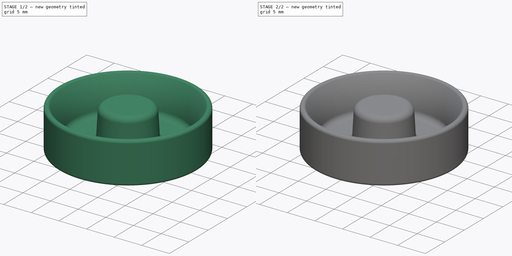
[diagram: build sequence overview — one tinted view per stage of 2, left to right]
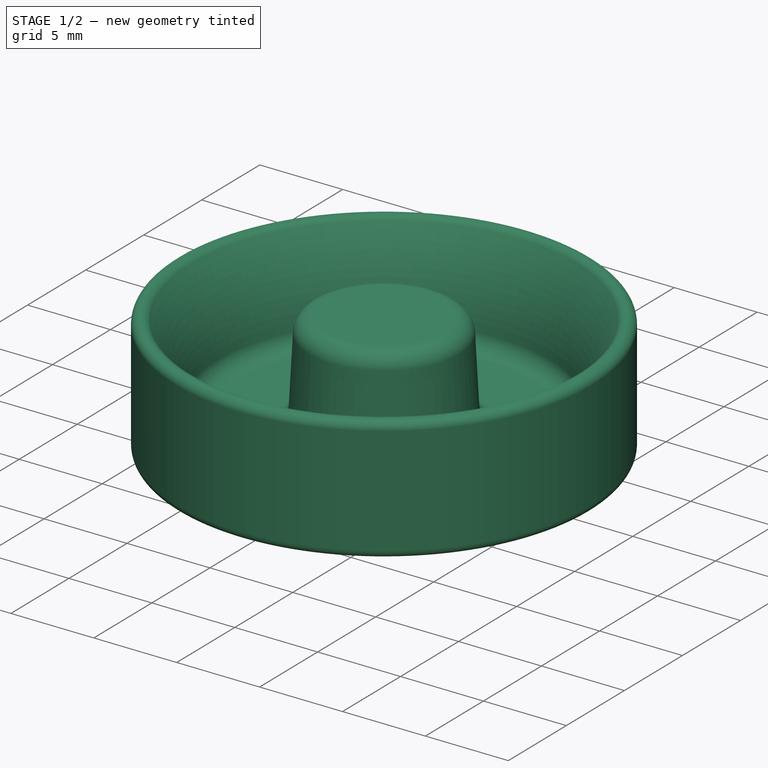
[diagram: stage 1 of 2 — iso view after this stage's code; geometry added in this stage tinted green]
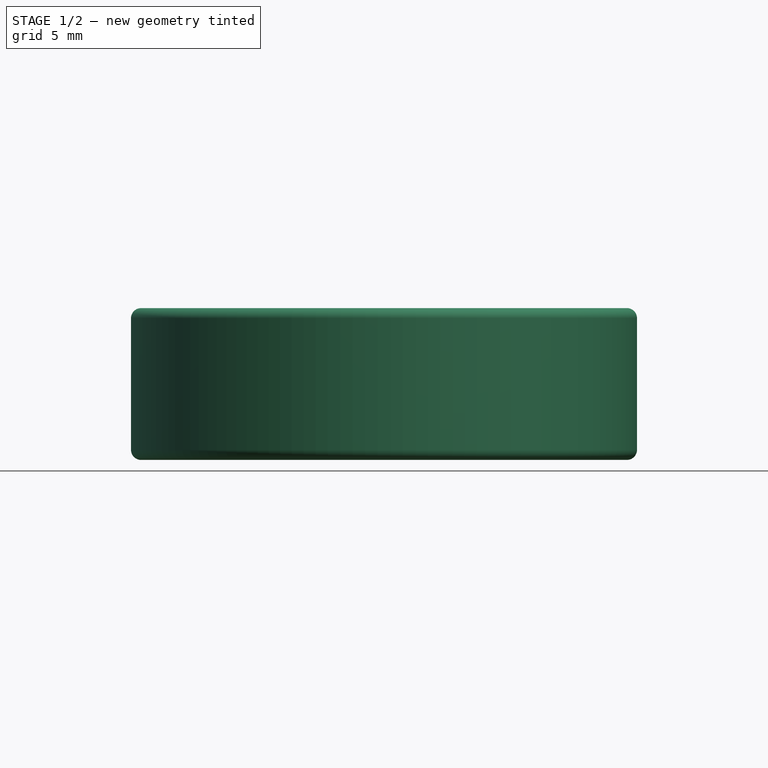
[diagram: stage 1 of 2 — front view after this stage's code; geometry added in this stage tinted green]
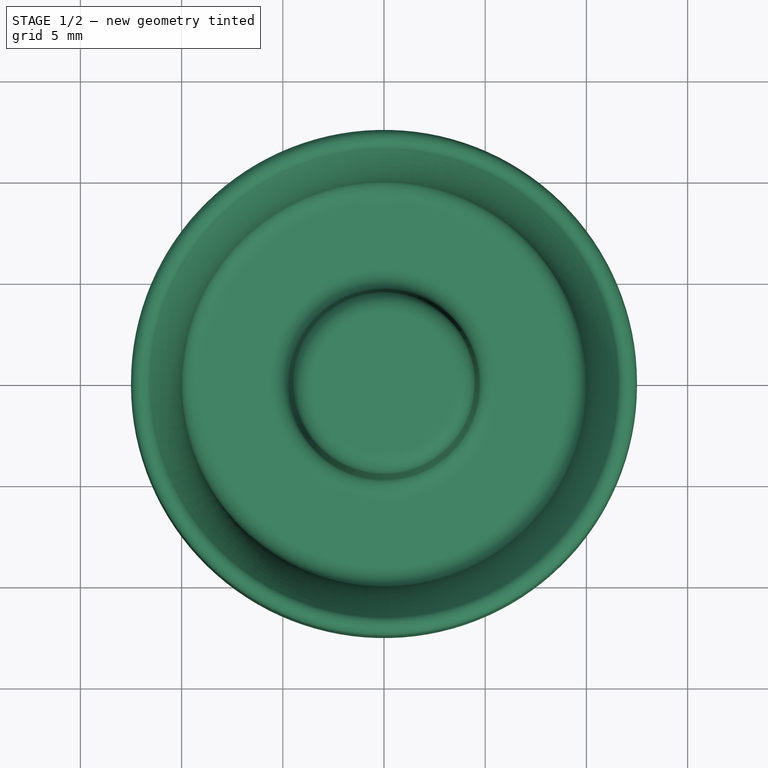
[diagram: stage 1 of 2 — top view after this stage's code; geometry added in this stage tinted green]
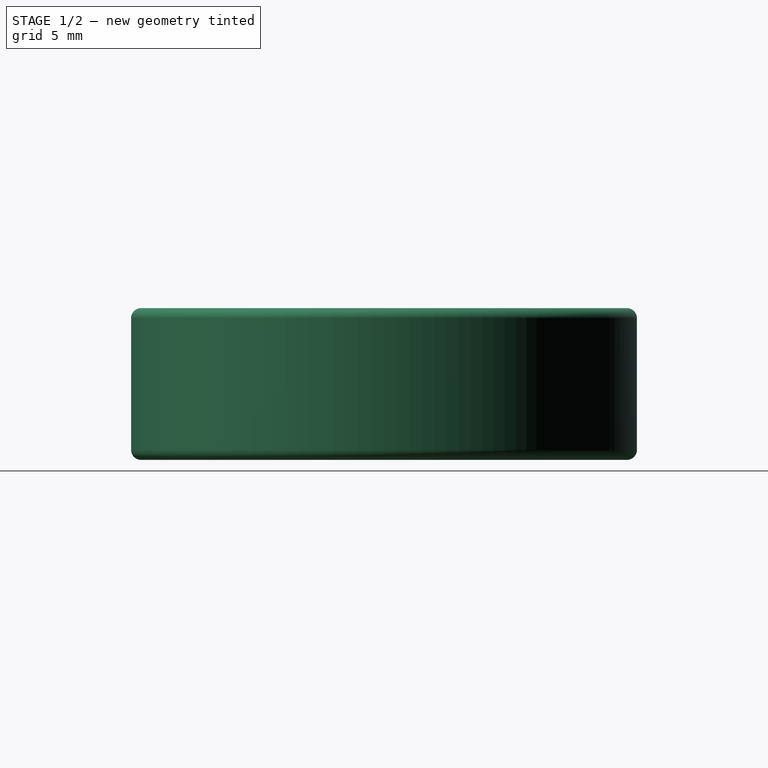
[diagram: stage 1 of 2 — right view after this stage's code; geometry added in this stage tinted green]
FCSTD DOCUMENT  (FreeCAD 0.22R37898 (Git))
Label: potentiometer knob 25
License: All rights reserved
LicenseURL: http://en.wikipedia.org/wiki/All_rights_reserved
objects: Sketcher::SketchObject×2, PartDesign::Revolution×1, PartDesign::Hole×1, PartDesign::Body×1
note: 7 computed .brp shape members not serialized (recipe doc carries the construction recipe); baked Part::Feature solids carry a one-line shape summary decoded from their .brp

FEATURE [Sketcher::SketchObject] Sketch  label="Knob sketch"
  AttachmentSupport = -> [XZ_Plane]
  FullyConstrained = true
  MapMode = 5
  Placement = pos=(0,0,0) rot=(1,0,0;1.5708rad)
  sketch-geometry (13):
    g0: LineSegment StartX=12.5 StartY=7 StartZ=0 EndX=12.5 EndY=0.5 EndZ=0
    g1: LineSegment StartX=12 StartY=0 StartZ=0 EndX=0 EndY=0 EndZ=0
    g2: LineSegment StartX=3.5 StartY=7.5 StartZ=0 EndX=0 EndY=7.5 EndZ=0
    g3: ArcOfCircle CenterX=12 CenterY=0.5 CenterZ=0 NormalX=0 NormalY=0 NormalZ=1 AngleXU=0 Radius=0.5 StartAngle=4.71239 EndAngle=6.28319
    g4: LineSegment StartX=0 StartY=7.5 StartZ=0 EndX=0 EndY=0 EndZ=0
    g5: ArcOfCircle CenterX=3.5 CenterY=6.5 CenterZ=0 NormalX=0 NormalY=0 NormalZ=1 AngleXU=0 Radius=1 StartAngle=0.0523599 EndAngle=1.5708
    g6: LineSegment StartX=4.49863 StartY=6.55234 StartZ=0 EndX=4.71375 EndY=2.44766 EndZ=0
    g7: ArcOfCircle CenterX=5.71238 CenterY=2.5 CenterZ=0 NormalX=0 NormalY=0 NormalZ=1 AngleXU=0 Radius=1 StartAngle=3.19395 EndAngle=4.71239
    g8: LineSegment StartX=5.71238 StartY=1.5 StartZ=0 EndX=9.00175 EndY=1.5 EndZ=0
    g9: ArcOfCircle CenterX=9.00175 CenterY=2.5 CenterZ=0 NormalX=0 NormalY=0 NormalZ=1 AngleXU=0 Radius=1 StartAngle=4.71239 EndAngle=6.22399
    g10: ArcOfCircle CenterX=19.9825 CenterY=1.84928 CenterZ=0 NormalX=0 NormalY=0 NormalZ=1 AngleXU=0 Radius=10 StartAngle=2.56856 EndAngle=3.0824
    g11: ArcOfCircle CenterX=12 CenterY=7 CenterZ=0 NormalX=0 NormalY=0 NormalZ=1 AngleXU=0 Radius=0.5 StartAngle=-9e-16 EndAngle=2.56856
    g12: LineSegment StartX=3.5 StartY=7.5 StartZ=0 EndX=12 EndY=7.5 EndZ=0
  constraints (33):
    c: Vertical(g0)
    c: Horizontal(g1)
    c: Horizontal(g2)
    c: PointOnObject(g2,g-2)
    c: DistanceX(g-1,g0) = 12.5  'radius'
    c: Coincident(g1,g-1)
    c: Radius(g3) = 0.5
    c: Tangent(g3,g0) = 1.5708
    c: Coincident(g4,g2)
    c: Coincident(g4,g1)
    c: DistanceY(g3,g8) = 1.5  'plate_height'
    c: DistanceY(g4,g4) = 7.5  'height'
    c: Horizontal(g8)
    c: Tangent(g8,g7) = -1.5708
    c: Tangent(g7,g6) = -1.5708
    c: Tangent(g6,g5) = 1.5708
    c: Tangent(g5,g2) = -1.5708
    c: Radius(g5) = 1
    c: DistanceX(g2,g2) = 3.5
    c: Radius(g7) = 1
    c: Angle(g2,g6) = 1.62316
    c: Tangent(g1,g3) = 1.5708
    c: Radius(g9) = 1
    c: Tangent(g10,g9) = 1.5708
    c: Radius(g11) = 0.5
    c: Tangent(g11,g10) = -1.5708
    c: Tangent(g0,g11) = 1.5708
    c: Tangent(g9,g8) = -1.5708
    c: Radius(g10) = 10
    c: DistanceX(g9,g0) = 2.5
    c: Coincident(g12,g2)
    c: Tangent(g12,g11) = 1.5708
    c: Horizontal(g12)
FEATURE [PartDesign::Revolution] Revolution
  Angle = 360
  Angle2 = 60
  Axis = (0,2e-16,1)
  Base = (0,0,0)
  Placement = pos=(0,0,0) rot=(1,0,0;1.5708rad)
  Profile = -> Sketch
  ReferenceAxis = -> Sketch [V_Axis]
  Reversed = true
  Suppressed = false
  Type = 0
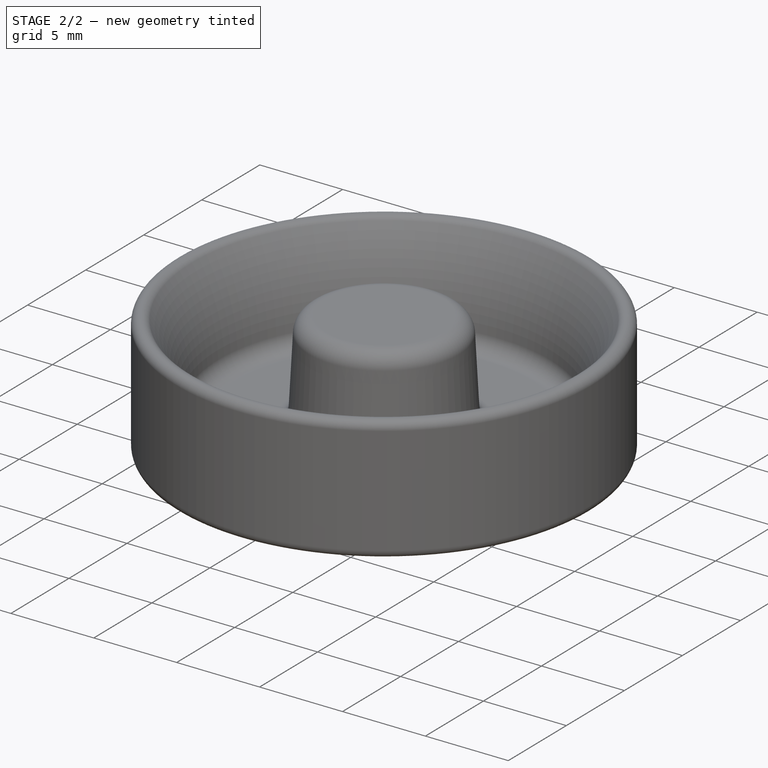
[diagram: stage 2 of 2 — iso view after this stage's code; geometry added in this stage tinted green]
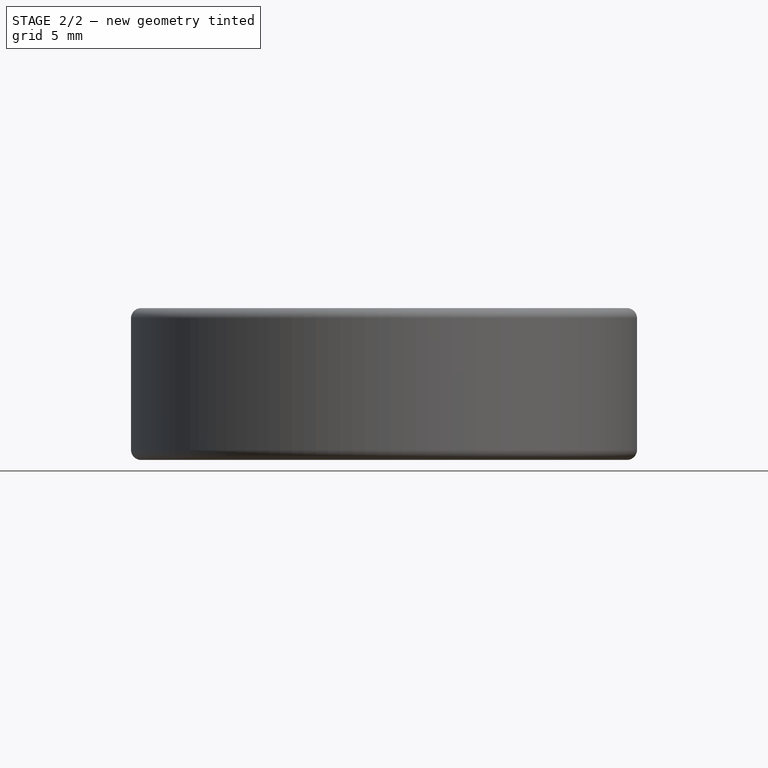
[diagram: stage 2 of 2 — front view after this stage's code; geometry added in this stage tinted green]
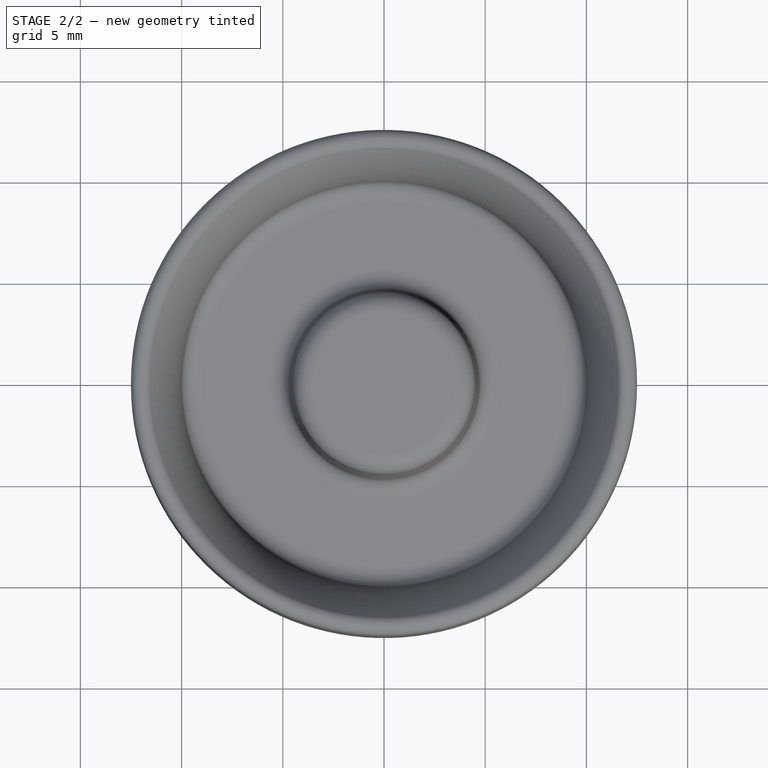
[diagram: stage 2 of 2 — top view after this stage's code; geometry added in this stage tinted green]
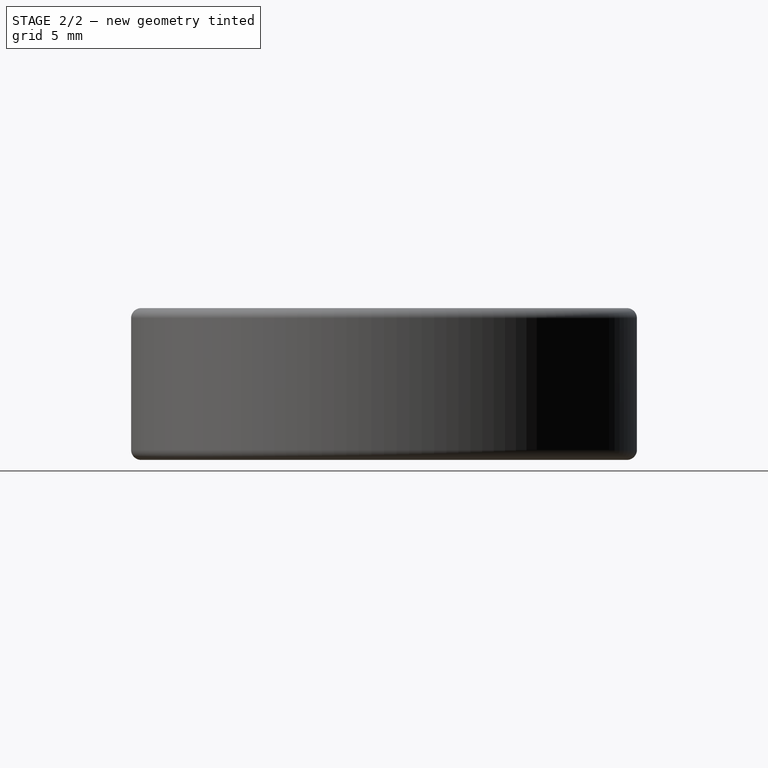
[diagram: stage 2 of 2 — right view after this stage's code; geometry added in this stage tinted green]
FEATURE [Sketcher::SketchObject] Sketch004
  AttachmentSupport = -> [XY_Plane]
  FullyConstrained = true
  MapMode = 5
  sketch-geometry (1):
    g0: Circle CenterX=0 CenterY=0 CenterZ=0 NormalX=0 NormalY=0 NormalZ=1 AngleXU=0 Radius=3
  constraints (2):
    c: Coincident(g0,g-1)
    c: Diameter(g0) = 6
FEATURE [PartDesign::Hole] Hole
  BaseFeature = -> Revolution
  CustomThreadClearance = 0
  Depth = 6.5
  DepthType = 0
  Diameter = 6
  DrillForDepth = false
  DrillPoint = 0
  DrillPointAngle = 118
  HoleCutCountersinkAngle = 90
  HoleCutCustomValues = false
  HoleCutDepth = 0
  HoleCutDiameter = 6.5
  HoleCutType = 2
  ModelThread = false
  Placement = pos=(0,0,0) rot=(1,0,0;1.5708rad)
  Profile = -> Sketch004
  Reversed = true
  Suppressed = false
  Tapered = false
  TaperedAngle = 90
  ThreadClass = 0
  ThreadDepth = 6.5
  ThreadDepthType = 0
  ThreadDirection = 0
  ThreadFit = 0
  ThreadSize = 0
  ThreadType = 0
  Threaded = false
  UseCustomThreadClearance = false
  expr: Depth = <<Knob sketch>>.Constraints.height - 1 mm
FEATURE [PartDesign::Body] Body  label="Knob 25"
  AllowCompound = false
  Group = -> [Sketch,Revolution,Sketch004,Hole]
  Origin = -> Origin
  Tip = -> Hole
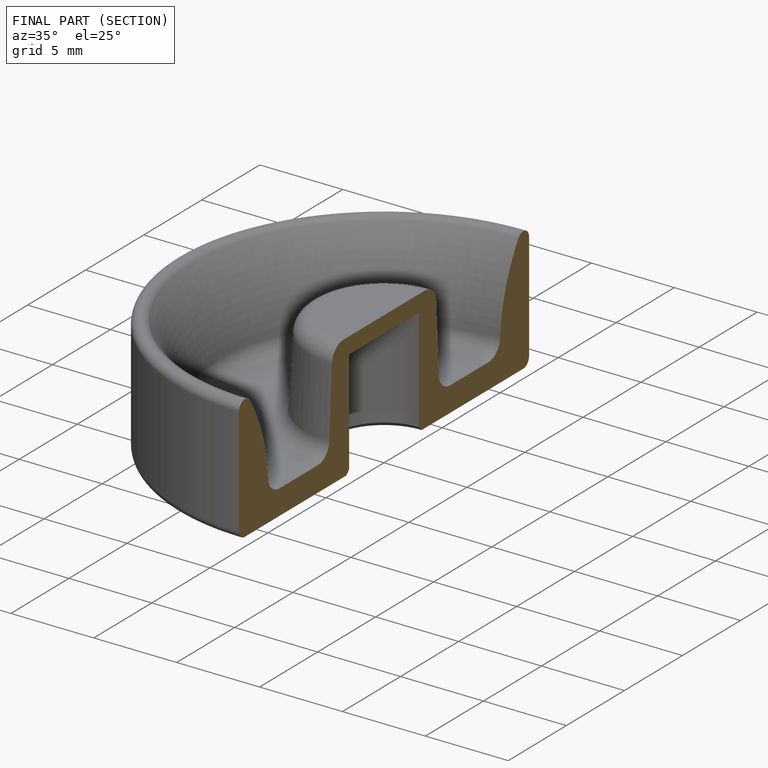
[diagram: finished part — half-section view (interior)]
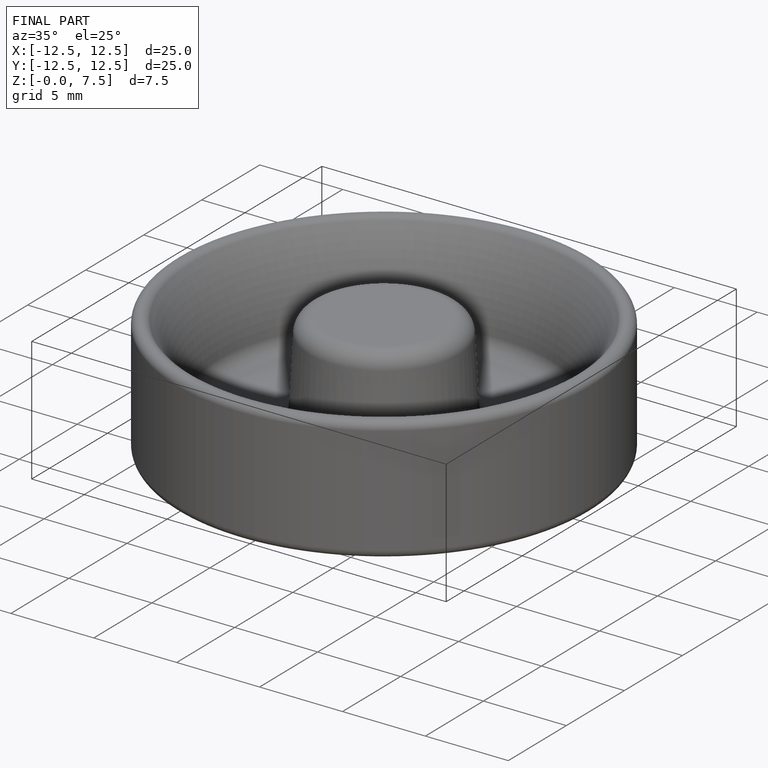
[diagram: finished part — iso view with bounding-box wireframe]
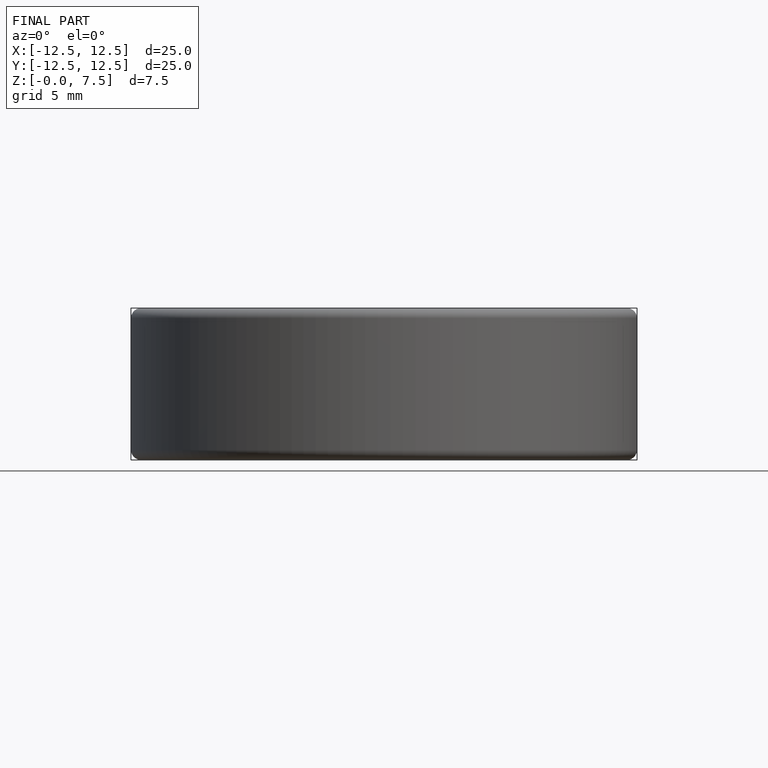
[diagram: finished part — front view with bounding-box wireframe]
